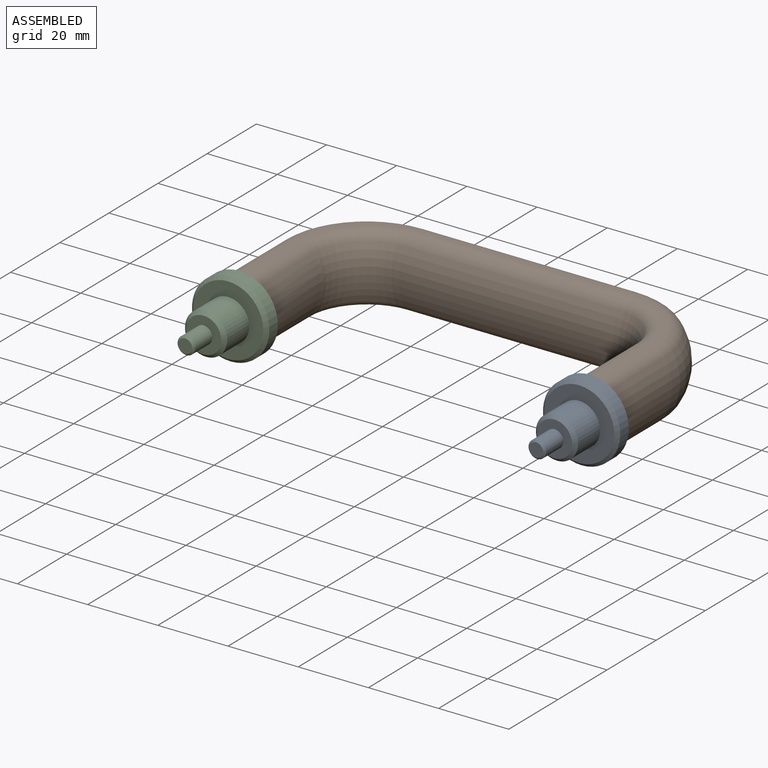
[diagram: assembled view]
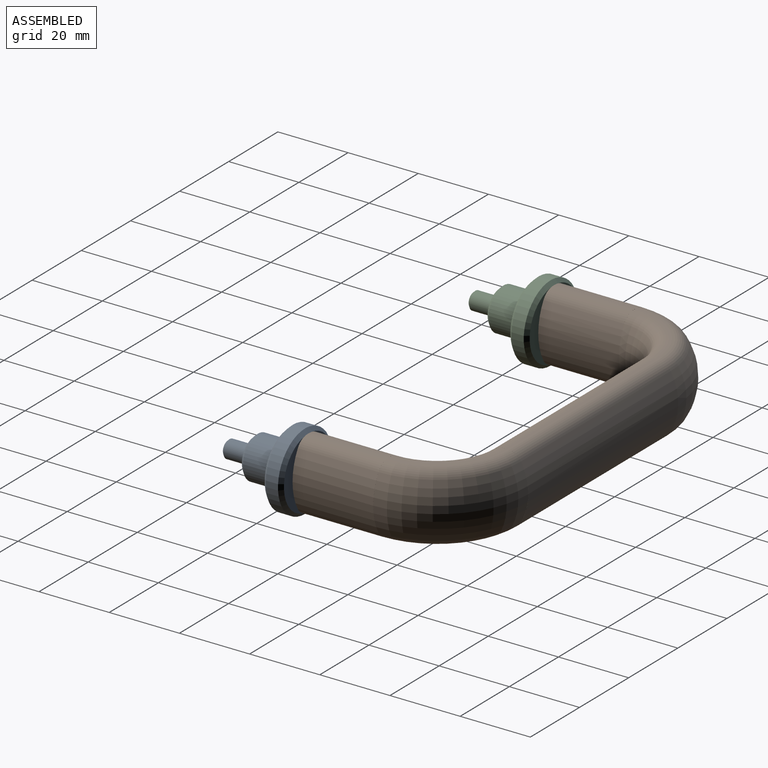
[diagram: assembled view, second angle]
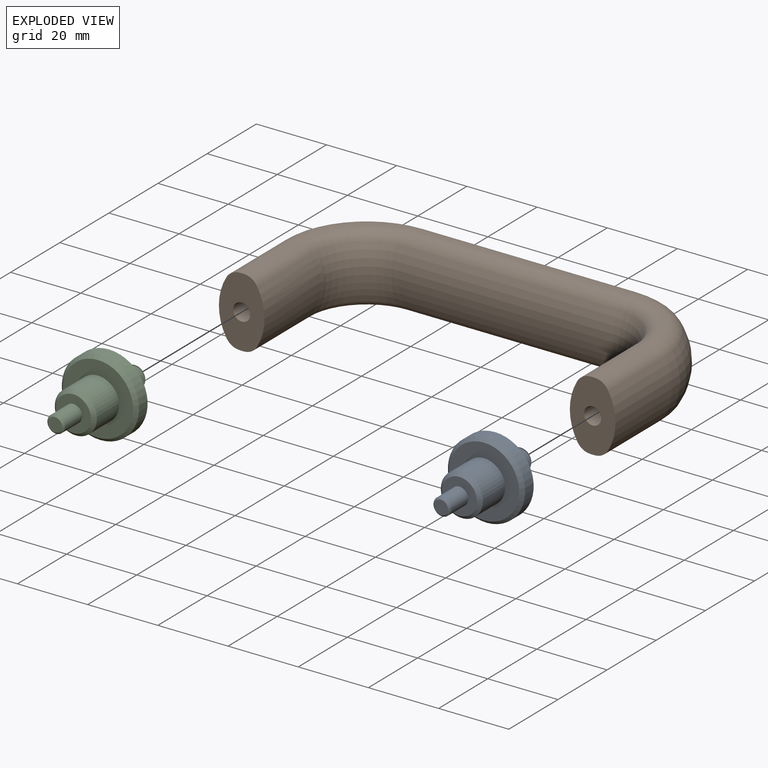
[diagram: exploded view]
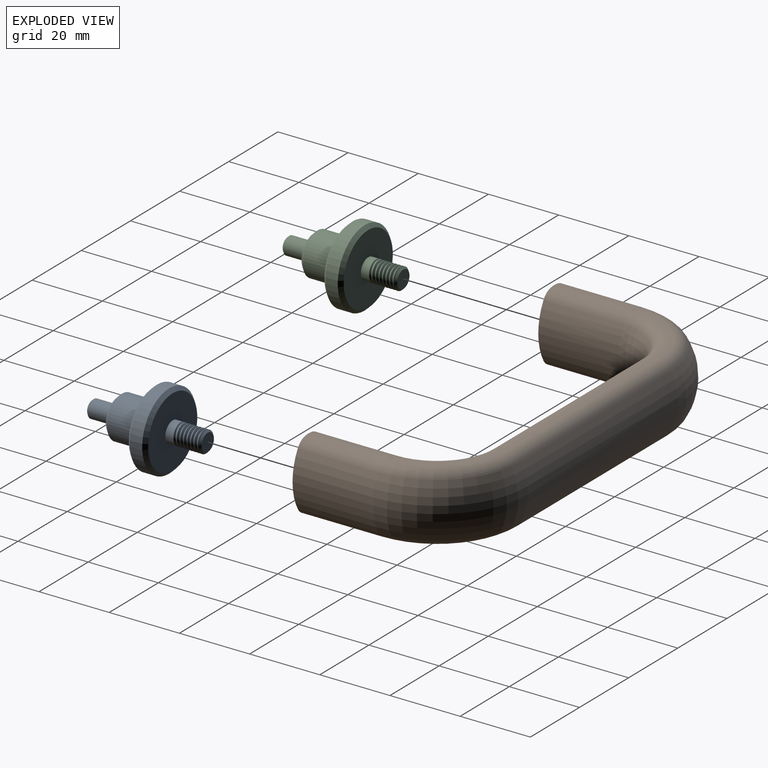
[diagram: exploded view, second angle]
ASSEMBLY  parts=3 mates=2
PART A: 29 faces, bbox 22.3x33.3x22.3 mm
  f0: cylinder r=6mm len=12mm, axis (0,1,0), area 339.3mm2, adj f2,f18
  f1: plane 10x10mm, normal (0,1,0), area 58.9mm2, adj f5,f18
  f2: plane 20x20mm, normal (0,1,0), area 201.1mm2, adj f0,f19
  f3: plane 20x20mm, normal (0,-1,0), area 285.9mm2, adj f7,f20
  f4: cylinder r=11mm len=22mm, axis (0,1,0), area 241.9mm2, adj f19,f20
  f5: cylinder r=2.5mm len=7mm, axis (0,-1,0), area 110mm2, adj f1,f17
  f6: plane 4x4mm, normal (0,1,0), area 12.6mm2, adj f17
  f7: cylinder r=3mm len=6mm, axis (0,1,0), area 45.7mm2, adj f3,f8,f21,f22,f23,f26
  f8: cylinder r=3mm len=6mm, axis (0,1,0), area 2.4mm2, adj f7,f9,f25,f26
  f9: cylinder r=3mm len=6mm, axis (0,1,0), area 2.4mm2, adj f8,f10,f25,f26
  f10: cylinder r=3mm len=6mm, axis (0,1,0), area 2.4mm2, adj f9,f11,f25,f26
  f11: cylinder r=3mm len=6mm, axis (0,1,0), area 2.4mm2, adj f10,f12,f25,f26
  f12: cylinder r=3mm len=6mm, axis (0,1,0), area 2.4mm2, adj f11,f13,f25,f26
  f13: cylinder r=3mm len=6mm, axis (0,1,0), area 2.4mm2, adj f12,f14,f16,f25,f26
  f14: cylinder r=3mm len=1.97mm, axis (0,1,0), area 0.1mm2, adj f13,f16,f25
  f15: plane 5x5mm, normal (0,-1,0), area 19.6mm2, adj f16
  f16: cone r=2.5mm half-angle=45deg, axis (0,1,0), area 12.2mm2, adj f13,f14,f15,f28
  f17: cone r=2.5mm half-angle=45deg, axis (0,-1,0), area 10mm2, adj f5,f6
  f18: cone r=6mm half-angle=45deg, axis (0,-1,0), area 48.9mm2, adj f0,f1
  f19: cone r=11mm half-angle=45deg, axis (0,-1,0), area 93.3mm2, adj f2,f4
  f20: cone r=10mm half-angle=45deg, axis (0,1,0), area 93.3mm2, adj f3,f4
  f21: plane 0.3x0.1mm, normal (-1,0.01,0), area 0mm2, adj f7,f22,f23,f27
  f22: bspline ~6.77x6.55mm, area 6mm2, adj f7,f21,f25,f27
  f23: bspline ~6.77x6.55mm, area 6mm2, adj f7,f21,f26,f27
  f24: bspline ~7.08x5.68mm, area 28mm2, adj f25,f26,f27,f28
  f25: bspline ~6.93x6.81mm, area 67.2mm2, adj f8,f9,f10,f11,f12,f13,f14,f22
  f26: bspline ~7.31x6.93mm, area 72.4mm2, adj f7,f8,f9,f10,f11,f12,f13,f23
  f27: bspline ~5.69x5.46mm, area 4.7mm2, adj f21,f22,f23,f24
  f28: plane 6.28x6.27mm, normal (0,1,0), area 5.5mm2, adj f16,f24,f25,f26
PART B: 53 faces, bbox 118.6x51.8x21.9 mm
  f0: torus R=20.12mm, axis (0,0,1), area 141.3mm2, adj f1,f22,f24,f47
  f1: torus R=10.6mm, axis (0,0,1), area 651.8mm2, adj f0,f7,f11,f47
  f2: torus R=19.5mm, axis (0,0,-1), area 67.4mm2, adj f3,f4,f13,f21,f39,f40
  f3: torus R=18.88mm, axis (0,0,-1), area 104.5mm2, adj f2,f4,f15,f16
  f4: plane 20x13mm, normal (1,0,0), area 0.5mm2, adj f2,f3,f6,f7,f13,f16,f17,f18
  f5: plane 20x7.6mm, normal (-1,0,0), area 0.1mm2, adj f8,f9,f10,f13,f22,f23,f25,f26
  f6: cylinder r=4.33mm len=61mm, axis (1,0,0), area 244.7mm2, adj f4,f7,f12,f13
  f7: cylinder r=15.38mm len=61mm, axis (1,0,0), area 1003.7mm2, adj f1,f4,f6,f24
  f8: torus R=28.4mm, axis (0,0,1), area 354.4mm2, adj f5,f9,f23,f41
  f9: torus R=18.88mm, axis (0,0,1), area 104.7mm2, adj f5,f8,f10,f47
  f10: torus R=19.5mm, axis (0,0,1), area 67.3mm2, adj f5,f9,f11,f13,f47
  f11: torus R=20.12mm, axis (0,0,1), area 141.3mm2, adj f1,f10,f12,f47
  f12: plane 3.26x2.11mm, normal (-1,0,0), area 0mm2, adj f6,f11
  f13: cylinder r=10mm len=61mm, axis (1,0,0), area 134.6mm2, adj f2,f4,f5,f6,f10,f28
  f14: cylinder r=15.38mm len=23mm, axis (0,-1,0), area 378.5mm2, adj f15,f16,f31,f38
  f15: cylinder r=4.33mm len=23mm, axis (0,-1,0), area 92.3mm2, adj f3,f14,f38,f40
  f16: torus R=28.4mm, axis (0,0,-1), area 354.4mm2, adj f3,f4,f14,f17
  f17: torus R=18.88mm, axis (0,0,-1), area 104.7mm2, adj f4,f16,f18,f36
  f18: torus R=19.5mm, axis (0,0,-1), area 67.3mm2, adj f4,f17,f19,f36
  f19: torus R=20.12mm, axis (0,0,-1), area 141.3mm2, adj f4,f18,f20,f36
  f20: torus R=10.6mm, axis (0,0,-1), area 651.8mm2, adj f4,f19,f21,f36
  f21: torus R=20.12mm, axis (0,0,-1), area 141.3mm2, adj f2,f4,f20,f36
  f22: torus R=19.5mm, axis (0,0,1), area 67.4mm2, adj f0,f5,f23,f30,f37
  f23: torus R=18.88mm, axis (0,0,1), area 104.5mm2, adj f5,f8,f22,f29
  f24: cylinder r=4.33mm len=61mm, axis (1,0,0), area 244.7mm2, adj f0,f4,f7,f25
  f25: cylinder r=10mm len=61mm, axis (1,0,0), area 134.6mm2, adj f4,f5,f24,f26
  f26: cylinder r=4.33mm len=61mm, axis (1,0,0), area 244.7mm2, adj f4,f5,f25,f27
  f27: cylinder r=15.38mm len=61mm, axis (1,0,0), area 1003.7mm2, adj f4,f5,f26,f28
  f28: cylinder r=4.33mm len=61mm, axis (1,0,0), area 244.7mm2, adj f4,f5,f13,f27
  f29: cylinder r=4.33mm len=23mm, axis (0,-1,0), area 92.3mm2, adj f23,f30,f41,f48
  f30: cylinder r=10mm len=23mm, axis (0,-1,0), area 50.7mm2, adj f22,f29,f37,f46,f48
  f31: cylinder r=4.33mm len=23mm, axis (0,-1,0), area 92.3mm2, adj f14,f32,f36,f38
  f32: cylinder r=10mm len=23mm, axis (0,-1,0), area 50.7mm2, adj f31,f33,f36,f38
  f33: cylinder r=4.33mm len=23mm, axis (0,-1,0), area 92.3mm2, adj f32,f34,f36,f38
  f34: cylinder r=15.38mm len=23mm, axis (0,-1,0), area 378.5mm2, adj f33,f35,f36,f38
  f35: cylinder r=4.33mm len=23mm, axis (0,-1,0), area 92.3mm2, adj f34,f36,f38,f40
  f36: plane 19.94x10.85mm, normal (0,1,0), area 0.4mm2, adj f17,f18,f19,f20,f21,f31,f32,f33
  f37: plane 1.1x0.07mm, normal (0,1,0), area 0mm2, adj f22,f30
  f38: plane 20x13mm, normal (0,-1,0), area 190.9mm2, adj f14,f15,f31,f32,f33,f34,f35,f40
  f39: plane 1.1x0.07mm, normal (0,1,0), area 0mm2, adj f2,f40
  f40: cylinder r=10mm len=23mm, axis (0,-1,0), area 50.7mm2, adj f2,f15,f35,f38,f39
  f41: cylinder r=15.38mm len=23mm, axis (0,-1,0), area 378.5mm2, adj f8,f29,f42,f48
  f42: cylinder r=4.33mm len=23mm, axis (0,-1,0), area 92.3mm2, adj f41,f43,f47,f48
  f43: cylinder r=10mm len=23mm, axis (0,-1,0), area 50.7mm2, adj f42,f44,f47,f48
  f44: cylinder r=4.33mm len=23mm, axis (0,-1,0), area 92.3mm2, adj f43,f45,f47,f48
  f45: cylinder r=15.38mm len=23mm, axis (0,-1,0), area 378.5mm2, adj f44,f46,f47,f48
  f46: cylinder r=4.33mm len=23mm, axis (0,-1,0), area 92.3mm2, adj f30,f45,f47,f48
  f47: plane 19.94x10.85mm, normal (0,1,0), area 0.3mm2, adj f0,f1,f9,f10,f11,f42,f43,f44
  f48: plane 20x13mm, normal (0,-1,0), area 190.9mm2, adj f29,f30,f41,f42,f43,f44,f45,f46
  f49: cone r=866.03mm half-angle=60deg, axis (0,-1,0), area 21.9mm2, adj f50
  f50: cylinder r=2.46mm len=11.58mm, axis (0,1,0), area 178.9mm2, adj f38,f49
  f51: cone r=866.03mm half-angle=60deg, axis (0,-1,0), area 21.9mm2, adj f52
  f52: cylinder r=2.46mm len=11.58mm, axis (0,1,0), area 178.9mm2, adj f48,f51
PART C: same geometry as A
PLACE A rot(axis=(1,0,0),180deg) t=(12.97,-45.64,23.72)mm
PLACE B t=(-37.03,-30.14,23.72)mm fixed
PLACE C rot(axis=(1,0,0),180deg) t=(-87.03,-45.64,23.72)mm
MATE fastened C.f7 <-> B.f51  axis (0,1,0) through (-87.03,-30.14,23.72)mm
MATE fastened A.f4 <-> B.f40  axis (0,1,0) through (12.97,-30.14,23.72)mm
